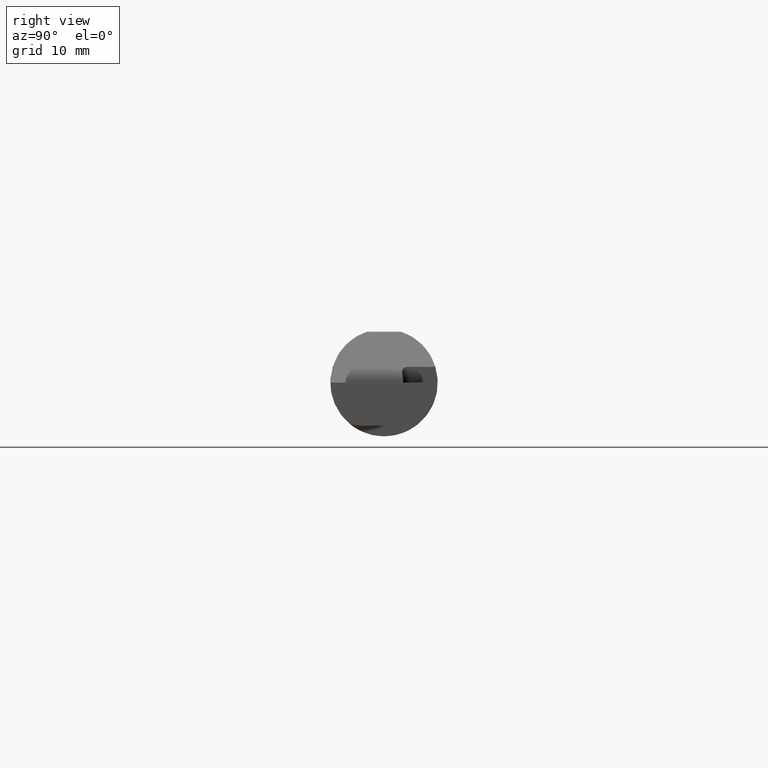
[diagram: clean part render]
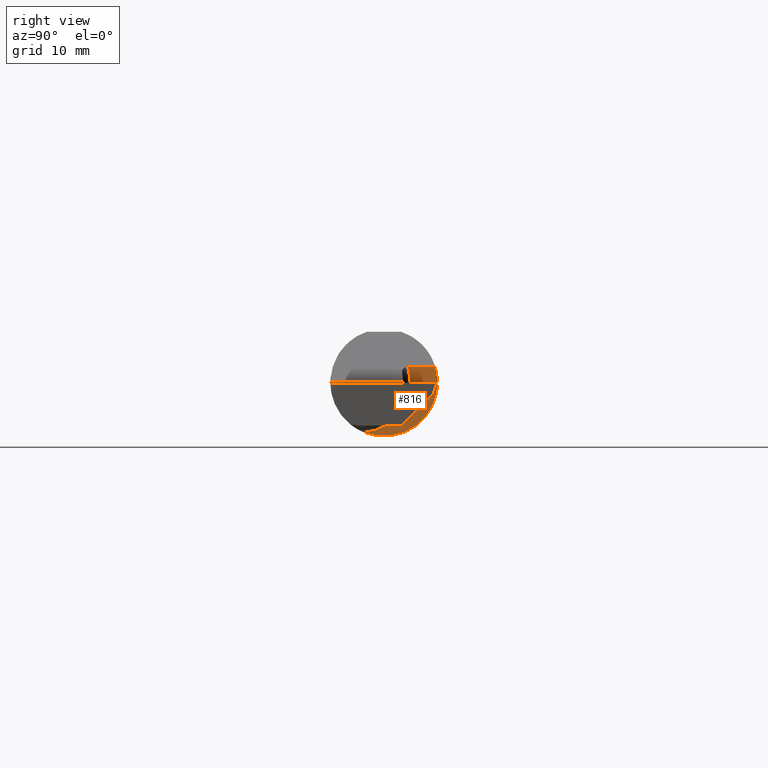
[diagram: same view with one face highlighted and labeled with its STEP entity id]
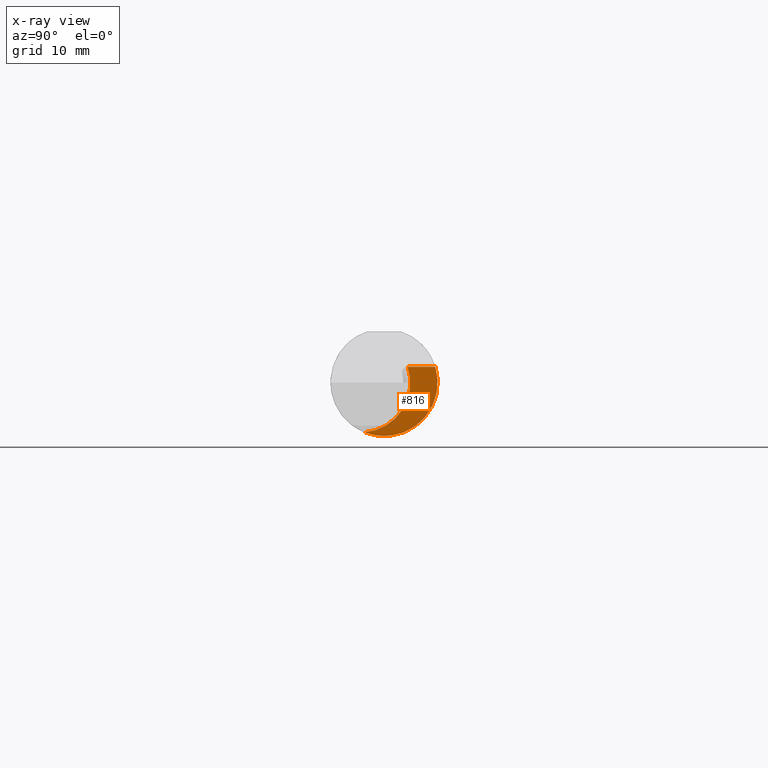
[diagram: x-ray of the same camera — body ghosted, the highlighted face saturated]
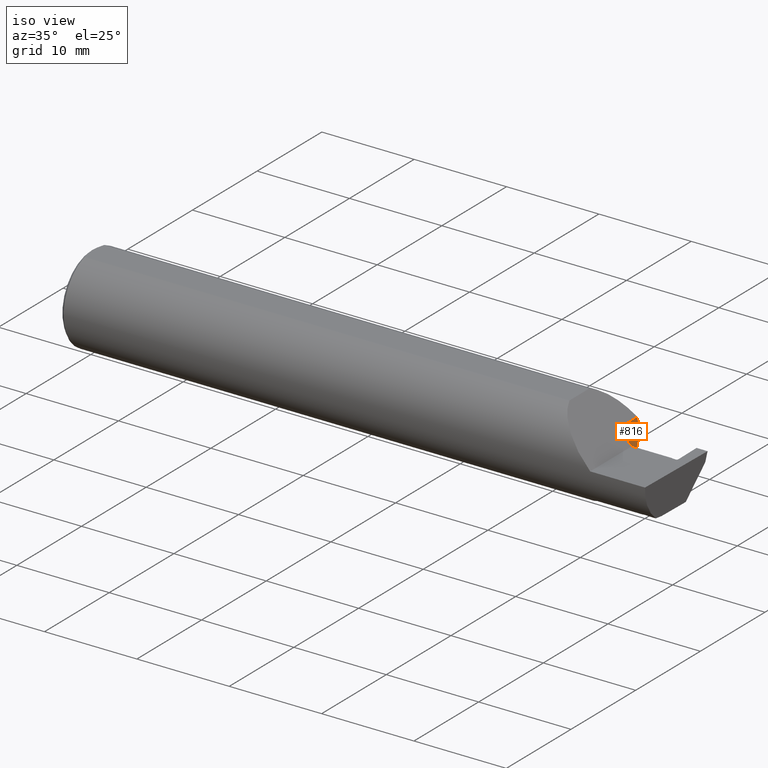
[diagram: same view with one face highlighted and labeled with its STEP entity id]
A machine part, right view. The second image highlights one B-rep face of the part: STEP entity #816.
The next image is the same camera in x-ray: the body ghosted, the highlighted face saturated — about 0% of this face is hidden behind the body in this view.
A second angle (iso view) of the same face is appended — the face is thin or edge-on in the first view.
In plain terms, the highlighted planar face has unit normal (1, 0, 0).
Its self-contained STEP definition (entity closure, byte-faithful):
#25 = DIRECTION ( 'NONE',  ( -1.000000000000000000, -0.000000000000000000, -0.000000000000000000 ) ) ;
#84 = EDGE_CURVE ( 'NONE', #491, #126, #362, .T. ) ;
#99 = DIRECTION ( 'NONE',  ( 1.000000000000000000, 0.000000000000000000, 0.000000000000000000 ) ) ;
#126 = VERTEX_POINT ( 'NONE', #460 ) ;
#153 = EDGE_CURVE ( 'NONE', #683, #491, #389, .T. ) ;
#168 = CARTESIAN_POINT ( 'NONE',  ( 2.205000000000000071, -0.08334999999999996578, 0.000000000000000000 ) ) ;
#244 = ORIENTED_EDGE ( 'NONE', *, *, #84, .T. ) ;
#303 = FACE_OUTER_BOUND ( 'NONE', #842, .T. ) ;
#362 = CIRCLE ( 'NONE', #478, 0.1873499999999999888 ) ;
#381 = DIRECTION ( 'NONE',  ( 0.000000000000000000, 0.000000000000000000, 1.000000000000000000 ) ) ;
#389 = CIRCLE ( 'NONE', #614, 0.1749999999999999889 ) ;
#429 = CARTESIAN_POINT ( 'NONE',  ( 2.205000000000000071, -0.06851976604679065053, -0.1743704796142198643 ) ) ;
#460 = CARTESIAN_POINT ( 'NONE',  ( 2.205000000000000071, 0.1790950097015547027, 0.05500000000000044437 ) ) ;
#478 = AXIS2_PLACEMENT_3D ( 'NONE', #812, #889, #522 ) ;
#491 = VERTEX_POINT ( 'NONE', #429 ) ;
#510 = PLANE ( 'NONE',  #921 ) ;
#522 = DIRECTION ( 'NONE',  ( 0.000000000000000000, 0.000000000000000000, -1.000000000000000000 ) ) ;
#546 = ORIENTED_EDGE ( 'NONE', *, *, #153, .T. ) ;
#587 = LINE ( 'NONE', #882, #922 ) ;
#609 = CARTESIAN_POINT ( 'NONE',  ( 2.205000000000000071, 0.08278247725836135329, 0.05500000000000044437 ) ) ;
#614 = AXIS2_PLACEMENT_3D ( 'NONE', #168, #25, #381 ) ;
#630 = ORIENTED_EDGE ( 'NONE', *, *, #844, .T. ) ;
#683 = VERTEX_POINT ( 'NONE', #609 ) ;
#733 = DIRECTION ( 'NONE',  ( 0.000000000000000000, 0.000000000000000000, -1.000000000000000000 ) ) ;
#794 = CARTESIAN_POINT ( 'NONE',  ( 2.205000000000000071, 0.2666500000000000536, 0.000000000000000000 ) ) ;
#810 = DIRECTION ( 'NONE',  ( 0.000000000000000000, -1.000000000000000000, 0.000000000000000000 ) ) ;
#812 = CARTESIAN_POINT ( 'NONE',  ( 2.205000000000000071, 0.000000000000000000, 0.000000000000000000 ) ) ;
#816 = ADVANCED_FACE ( 'NONE', ( #303 ), #510, .T. ) ;
#842 = EDGE_LOOP ( 'NONE', ( #244, #630, #546 ) ) ;
#844 = EDGE_CURVE ( 'NONE', #126, #683, #587, .T. ) ;
#882 = CARTESIAN_POINT ( 'NONE',  ( 2.205000000000000071, -0.2000000000000000111, 0.05500000000000044437 ) ) ;
#889 = DIRECTION ( 'NONE',  ( 1.000000000000000000, 0.000000000000000000, 0.000000000000000000 ) ) ;
#921 = AXIS2_PLACEMENT_3D ( 'NONE', #794, #99, #733 ) ;
#922 = VECTOR ( 'NONE', #810, 39.37007874015748143 ) ;